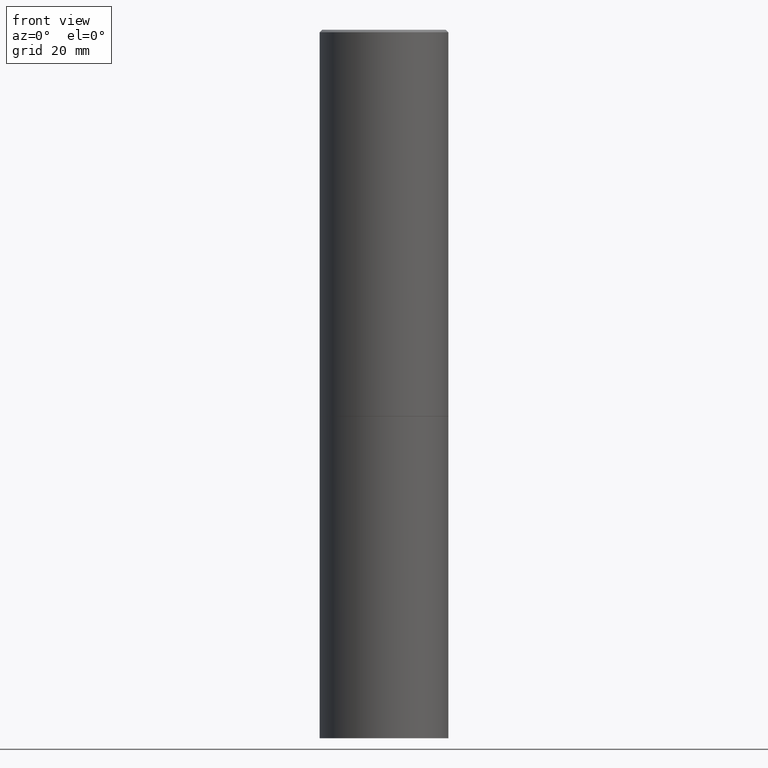
[diagram: clean part render]
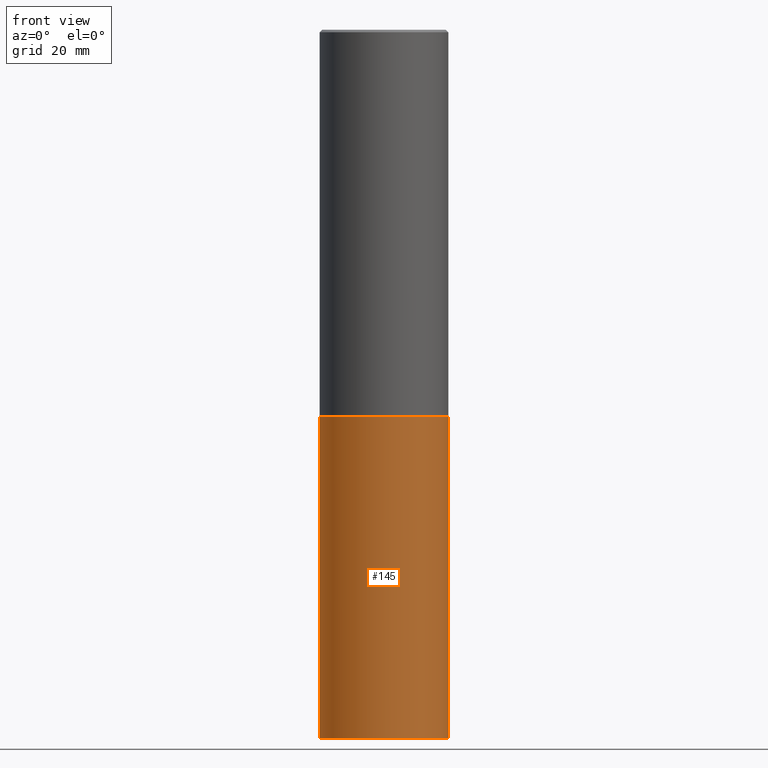
[diagram: same view with one face highlighted and labeled with its STEP entity id]
A machine part, front view. The second image highlights one B-rep face of the part: STEP entity #145.
In plain terms, the highlighted cylindrical surface (partial cylindrical patch) has radius 12.7 mm, axis along (-0, 0, 1).
Its self-contained STEP definition (entity closure, byte-faithful):
#4 = EDGE_CURVE ( 'NONE', #325, #177, #262, .T. ) ;
#13 = EDGE_LOOP ( 'NONE', ( #241, #298, #129, #20 ) ) ;
#15 = CARTESIAN_POINT ( 'NONE',  ( 1.345007843401824904E-28, -1.920314736363729972E-14, -5.500000000000000000 ) ) ;
#20 = ORIENTED_EDGE ( 'NONE', *, *, #305, .F. ) ;
#22 = CARTESIAN_POINT ( 'NONE',  ( 0.5000000000000000000, -2.269462870248043307E-14, -5.500000000000000000 ) ) ;
#26 = CYLINDRICAL_SURFACE ( 'NONE', #164, 0.5000000000000000000 ) ;
#43 = DIRECTION ( 'NONE',  ( 1.000000000000000000, -6.982962677686262766E-15, 0.000000000000000000 ) ) ;
#56 = DIRECTION ( 'NONE',  ( -2.445468806185136877E-29, 3.491481338843145188E-15, 1.000000000000000000 ) ) ;
#81 = AXIS2_PLACEMENT_3D ( 'NONE', #87, #203, #149 ) ;
#87 = CARTESIAN_POINT ( 'NONE',  ( 7.336406418555408669E-29, -1.047444401652943478E-14, -2.999999999999999556 ) ) ;
#89 = VECTOR ( 'NONE', #120, 39.37007874015748143 ) ;
#95 = VERTEX_POINT ( 'NONE', #304 ) ;
#97 = VECTOR ( 'NONE', #56, 39.37007874015748143 ) ;
#120 = DIRECTION ( 'NONE',  ( -2.445468806185136877E-29, 3.491481338843145188E-15, 1.000000000000000000 ) ) ;
#129 = ORIENTED_EDGE ( 'NONE', *, *, #268, .T. ) ;
#140 = FACE_OUTER_BOUND ( 'NONE', #13, .T. ) ;
#142 = DIRECTION ( 'NONE',  ( 1.000000000000000000, -6.982962677686266711E-15, 4.876176775795935793E-29 ) ) ;
#145 = ADVANCED_FACE ( 'NONE', ( #140 ), #26, .T. ) ;
#147 = CARTESIAN_POINT ( 'NONE',  ( 0.5000000000000000000, -1.396592535537256813E-14, -2.999999999999999556 ) ) ;
#149 = DIRECTION ( 'NONE',  ( 1.000000000000000000, -6.982962677686266711E-15, 0.000000000000000000 ) ) ;
#164 = AXIS2_PLACEMENT_3D ( 'NONE', #166, #195, #142 ) ;
#166 = CARTESIAN_POINT ( 'NONE',  ( 0.000000000000000000, 0.000000000000000000, 0.000000000000000000 ) ) ;
#177 = VERTEX_POINT ( 'NONE', #22 ) ;
#195 = DIRECTION ( 'NONE',  ( -2.445468806185136597E-29, 3.491481338843145583E-15, 1.000000000000000000 ) ) ;
#203 = DIRECTION ( 'NONE',  ( -2.445468806185136597E-29, 3.491481338843145583E-15, 1.000000000000000000 ) ) ;
#223 = CIRCLE ( 'NONE', #81, 0.5000000000000000000 ) ;
#238 = CARTESIAN_POINT ( 'NONE',  ( -0.5000000000000000000, -1.128608201128286632E-14, -5.500000000000000000 ) ) ;
#241 = ORIENTED_EDGE ( 'NONE', *, *, #339, .F. ) ;
#262 = CIRCLE ( 'NONE', #363, 0.5000000000000000000 ) ;
#268 = EDGE_CURVE ( 'NONE', #177, #303, #330, .T. ) ;
#298 = ORIENTED_EDGE ( 'NONE', *, *, #4, .T. ) ;
#299 = DIRECTION ( 'NONE',  ( -2.445468806185136597E-29, 3.491481338843145583E-15, 1.000000000000000000 ) ) ;
#303 = VERTEX_POINT ( 'NONE', #147 ) ;
#304 = CARTESIAN_POINT ( 'NONE',  ( -0.5000000000000000000, -1.128608201128286632E-14, -2.999999999999999556 ) ) ;
#305 = EDGE_CURVE ( 'NONE', #95, #303, #223, .T. ) ;
#312 = CARTESIAN_POINT ( 'NONE',  ( 0.5000000000000000000, -3.491481338843133355E-15, 2.438088387897967896E-29 ) ) ;
#317 = LINE ( 'NONE', #342, #89 ) ;
#325 = VERTEX_POINT ( 'NONE', #238 ) ;
#330 = LINE ( 'NONE', #312, #97 ) ;
#339 = EDGE_CURVE ( 'NONE', #325, #95, #317, .T. ) ;
#342 = CARTESIAN_POINT ( 'NONE',  ( -0.5000000000000000000, 3.552713678800500929E-15, -2.459467545127452891E-29 ) ) ;
#363 = AXIS2_PLACEMENT_3D ( 'NONE', #15, #299, #43 ) ;